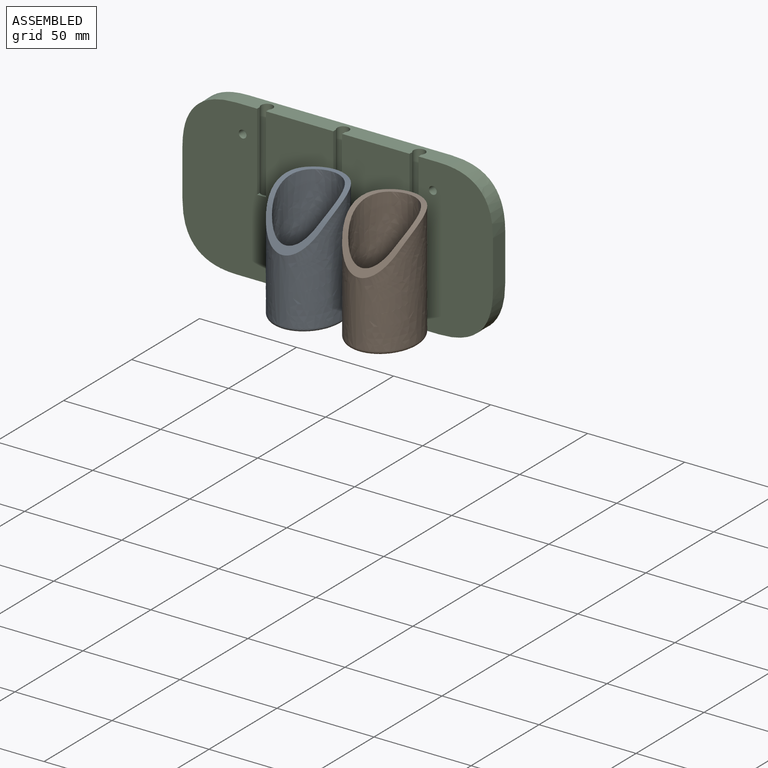
[diagram: assembled view]
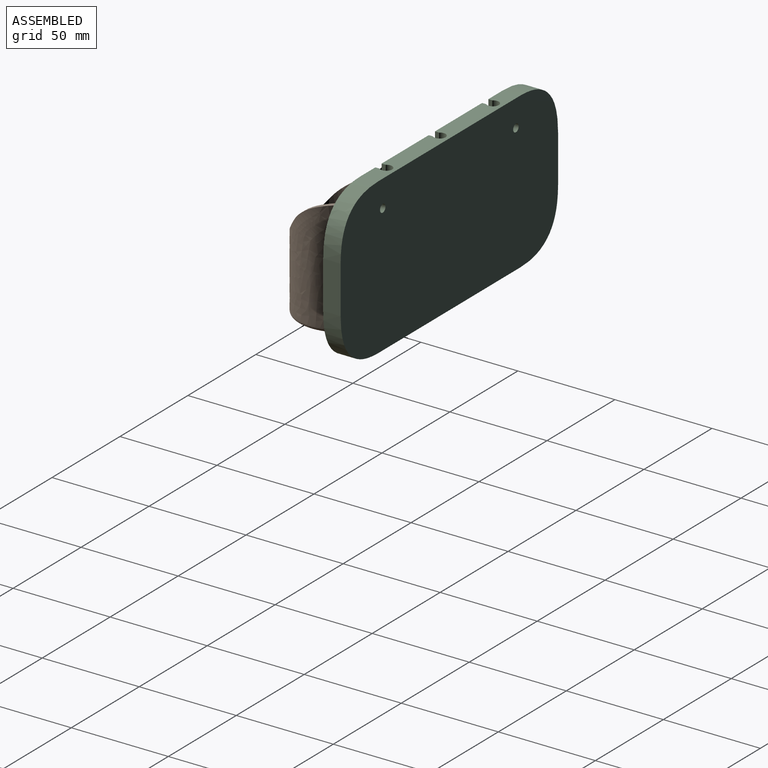
[diagram: assembled view, second angle]
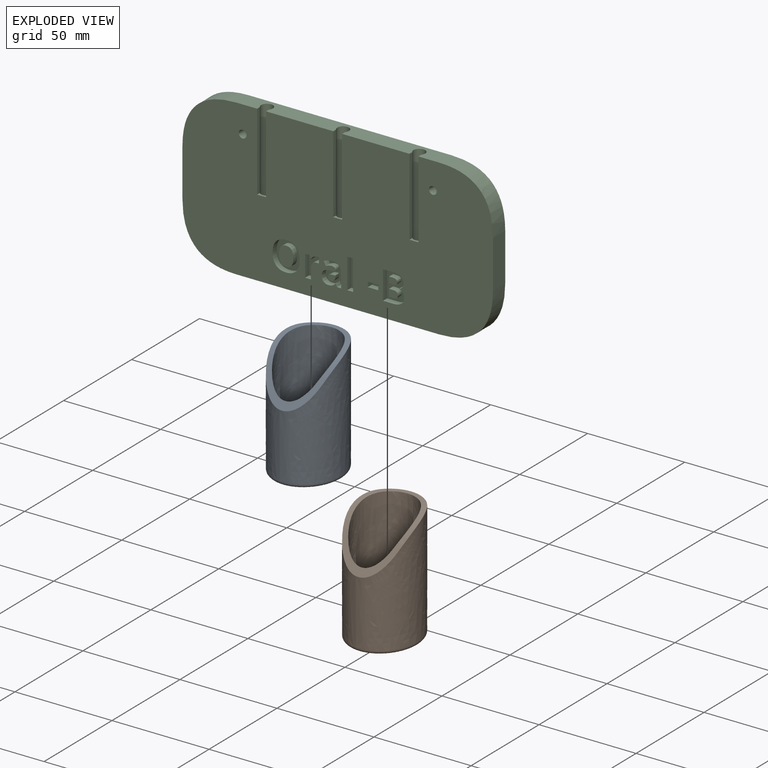
[diagram: exploded view]
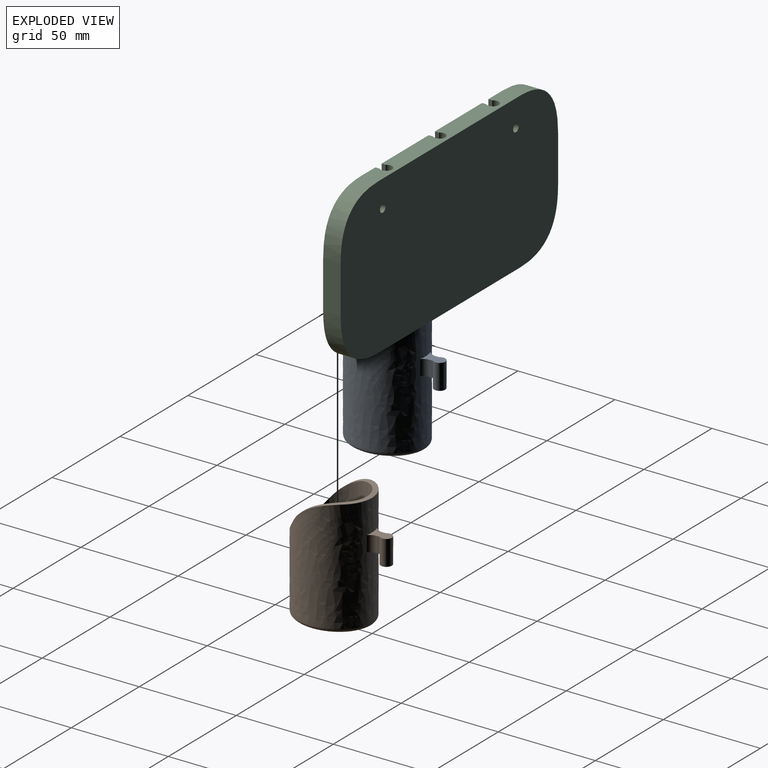
[diagram: exploded view, second angle]
ASSEMBLY  parts=3 mates=2
PART A: 27 faces, bbox 34.4x48.9x60 mm
  f0: extruded ~58x38.97mm, area 5697mm2, adj f2,f7,f8,f16,f17,f18,f19,f25
  f1: extruded ~55x34mm, area 4754.5mm2, adj f2,f4,f16,f17,f18
  f2: plane 23.82x5.46mm, normal (0,0,1), area 57.1mm2, adj f0,f1,f17,f18
  f3: plane 35.07x30.36mm, normal (0,0,-1), area 810.5mm2, adj f11,f12,f13,f14,f15,f19
  f4: plane 34x29.02mm, normal (0,0,1), area 607.1mm2, adj f1,f20,f21,f22,f23,f24
  f5: plane 8x2.24mm, normal (1,0,0), area 17.9mm2, adj f7,f8,f9,f26
  f6: plane 8x2.24mm, normal (-1,0,0), area 17.9mm2, adj f7,f8,f9,f25
  f7: plane 8.47x6.06mm, normal (0,0,-1), area 23.7mm2, adj f0,f5,f6,f9,f25,f26
  f8: plane 10.79x8.47mm, normal (0,0,1), area 50.1mm2, adj f0,f5,f6,f9,f25,f26
  f9: cylinder r=2.9mm len=13mm, axis (0,0,1), area 195.7mm2, adj f5,f6,f7,f8,f10
  f10: plane 5.8x5.8mm, normal (0,0,-1), area 26.4mm2, adj f9
  f11: cylinder r=1.25mm len=3mm, axis (0,0,-1), area 23.6mm2, adj f3,f24
  f12: cylinder r=1.35mm len=3mm, axis (0,0,-1), area 25.4mm2, adj f3,f23
  f13: cylinder r=1.25mm len=3mm, axis (0,0,-1), area 23.6mm2, adj f3,f22
  f14: cylinder r=1.25mm len=3mm, axis (0,0,-1), area 23.6mm2, adj f3,f21
  f15: cylinder r=1.25mm len=3mm, axis (0,0,-1), area 23.6mm2, adj f3,f20
  f16: plane 29.03x12.48mm, normal (0,-0.81,0.59), area 138.3mm2, adj f0,f1,f17,f18
  f17: cylinder r=30.35mm len=24.53mm, axis (1,0,0), area 81.6mm2, adj f0,f1,f2,f16
  f18: cylinder r=30.35mm len=24.53mm, axis (1,0,0), area 81.6mm2, adj f0,f1,f2,f16
  f19: bspline ~39.07x34.36mm, area 348.4mm2, adj f0,f3
  f20: torus R=3.25mm, axis (0,0,1), area 39mm2, adj f4,f15
  f21: torus R=3.25mm, axis (0,0,1), area 39mm2, adj f4,f14
  f22: torus R=3.25mm, axis (0,0,1), area 39mm2, adj f4,f13
  f23: torus R=3.35mm, axis (0,0,1), area 40.9mm2, adj f4,f12
  f24: torus R=3.25mm, axis (0,0,1), area 39mm2, adj f4,f11
  f25: cylinder r=5.16mm len=8mm, axis (0,0,1), area 37.1mm2, adj f0,f6,f7,f8
  f26: cylinder r=5.16mm len=8mm, axis (0,0,1), area 29.5mm2, adj f0,f5,f7,f8
PART B: same geometry as A
PART C: 122 faces, bbox 160x9.9x80 mm
  f0: plane 160x80mm, normal (0,-1,0), area 11197.4mm2, adj f1,f2,f3,f4,f6,f7,f8,f9
  f1: plane 24.47x9mm, normal (-1,0,0), area 220.3mm2, adj f0,f5,f9,f11
  f2: plane 104.47x9mm, normal (0,0,-1), area 940.3mm2, adj f0,f5,f10,f11
  f3: plane 24.47x9mm, normal (1,0,0), area 220.3mm2, adj f0,f5,f8,f10
  f4: plane 104.47x9mm, normal (0,0,1), area 836.8mm2, adj f0,f5,f8,f9,f107,f109,f111,f113
  f5: plane 160x80mm, normal (0,1,0), area 12261mm2, adj f1,f2,f3,f4,f6,f7,f8,f9
  f6: cylinder r=2mm len=9mm, axis (0,-1,0), area 113.1mm2, adj f0,f5
  f7: cylinder r=2mm len=9mm, axis (0,-1,0), area 113.1mm2, adj f0,f5
  f8: bspline ~27.76x27.76mm, area 405.6mm2, adj f0,f3,f4,f5
  f9: bspline ~27.76x27.76mm, area 405.6mm2, adj f0,f1,f4,f5
  f10: bspline ~27.76x27.76mm, area 405.6mm2, adj f0,f2,f3,f5
  f11: bspline ~27.76x27.76mm, area 405.6mm2, adj f0,f1,f2,f5
  f12: extruded ~3x1.03mm, area 3.1mm2, adj f0,f13,f24,f25
  f13: extruded ~3x1.93mm, area 6.1mm2, adj f0,f12,f14,f25
  f14: extruded ~3x1.52mm, area 6.3mm2, adj f0,f13,f15,f25
  f15: plane 3x0.15mm, normal (0,0,-1), area 0.4mm2, adj f0,f14,f16,f25
  f16: plane 3x1.89mm, normal (-0.97,0,-0.23), area 5.8mm2, adj f0,f15,f17,f25
  f17: plane 3x2.32mm, normal (0,0,-1), area 6.9mm2, adj f0,f16,f18,f25
  f18: plane 11.21x3mm, normal (1,0,0), area 33.6mm2, adj f0,f17,f19,f25
  f19: plane 3.06x3mm, normal (0,0,1), area 9.2mm2, adj f0,f18,f20,f25
  f20: plane 5.7x3mm, normal (-1,0,0), area 17.1mm2, adj f0,f19,f21,f25
  f21: extruded ~3x2.11mm, area 7mm2, adj f0,f20,f22,f25
  f22: extruded ~3x2.28mm, area 7.4mm2, adj f0,f21,f23,f25
  f23: extruded ~3x0.9mm, area 2.7mm2, adj f0,f22,f24,f25
  f24: plane 3x2.86mm, normal (-1,0,0.08), area 8.6mm2, adj f0,f12,f23,f25
  f25: plane 11.41x7.29mm, normal (0,-1,0), area 44.9mm2, adj f12,f13,f14,f15,f16,f17,f18,f19
  f26: plane 3.06x3mm, normal (0,0,1), area 9.2mm2, adj f0,f27,f29,f30
  f27: plane 15.6x3mm, normal (-1,0,0), area 46.8mm2, adj f0,f26,f28,f30
  f28: plane 3.06x3mm, normal (0,0,-1), area 9.2mm2, adj f0,f27,f29,f30
  f29: plane 15.6x3mm, normal (1,0,0), area 46.8mm2, adj f0,f26,f28,f30
  f30: plane 15.6x3.06mm, normal (0,-1,0), area 47.7mm2, adj f26,f27,f28,f29
  f31: plane 3x2.5mm, normal (1,0,0), area 7.5mm2, adj f0,f32,f34,f35
  f32: plane 5.38x3mm, normal (0,0,1), area 16.1mm2, adj f0,f31,f33,f35
  f33: plane 3x2.5mm, normal (-1,0,0), area 7.5mm2, adj f0,f32,f34,f35
  f34: plane 5.38x3mm, normal (0,0,-1), area 16.1mm2, adj f0,f31,f33,f35
  f35: plane 5.38x2.5mm, normal (0,-1,0), area 13.5mm2, adj f31,f32,f33,f34
  f36: extruded ~3.7x3mm, area 11.6mm2, adj f37,f49,f50,f104
  f37: extruded ~3.7x3mm, area 11.7mm2, adj f36,f38,f50,f104
  f38: extruded ~3x2.8mm, area 9.5mm2, adj f37,f39,f50,f104
  f39: extruded ~4.95x3.7mm, area 21.1mm2, adj f38,f40,f50,f104
  f40: extruded ~4.94x3.72mm, area 21.2mm2, adj f39,f49,f50,f104
  f41: extruded ~5.59x3mm, area 18.1mm2, adj f0,f42,f48,f50
  f42: extruded ~5.59x3mm, area 18mm2, adj f0,f41,f43,f50
  f43: extruded ~5.17x3mm, area 17.1mm2, adj f0,f42,f44,f50
  f44: extruded ~5.19x3mm, area 17.1mm2, adj f0,f43,f45,f50
  f45: extruded ~5.59x3mm, area 18.1mm2, adj f0,f44,f46,f50
  f46: extruded ~5.61x3mm, area 18.1mm2, adj f0,f45,f47,f50
  f47: extruded ~5.17x3mm, area 17.1mm2, adj f0,f46,f48,f50
  f48: extruded ~5.17x3mm, area 17.1mm2, adj f0,f41,f47,f50
  f49: extruded ~3x2.79mm, area 9.5mm2, adj f36,f40,f50,f104
  f50: plane 15.09x13.95mm, normal (0,-1,0), area 112.4mm2, adj f36,f37,f38,f39,f40,f41,f42,f43
  f51: plane 3x1.18mm, normal (-0.04,0,1), area 3.6mm2, adj f52,f75,f76,f105
  f52: plane 3x0.92mm, normal (1,0,0), area 2.8mm2, adj f51,f53,f76,f105
  f53: extruded ~3x1.62mm, area 5.4mm2, adj f52,f54,f76,f105
  f54: extruded ~3x1.7mm, area 5.6mm2, adj f53,f55,f76,f105
  f55: extruded ~3x1.48mm, area 6.8mm2, adj f54,f56,f76,f105
  f56: extruded ~3x1.34mm, area 4.7mm2, adj f55,f75,f76,f105
  f57: plane 3x1.52mm, normal (0.93,0,0.36), area 4.9mm2, adj f0,f58,f74,f76
  f58: plane 3x2.13mm, normal (0,0,1), area 6.4mm2, adj f0,f57,f59,f76
  f59: plane 7.47x3mm, normal (-1,0,0), area 22.4mm2, adj f0,f58,f60,f76
  f60: extruded ~3x2.99mm, area 10mm2, adj f0,f59,f61,f76
  f61: extruded ~3.46x3mm, area 11mm2, adj f0,f60,f62,f76
  f62: extruded ~4.29x3mm, area 13.3mm2, adj f0,f61,f63,f76
  f63: plane 3x2.07mm, normal (0.9,0,0.44), area 6.9mm2, adj f0,f62,f64,f76
  f64: extruded ~3.16x3mm, area 9.9mm2, adj f0,f63,f65,f76
  f65: extruded ~3x1.74mm, area 8.4mm2, adj f0,f64,f66,f76
  f66: plane 3x0.49mm, normal (1,0,0), area 1.5mm2, adj f0,f65,f67,f76
  f67: plane 3x1.95mm, normal (0.03,0,-1), area 5.8mm2, adj f0,f66,f68,f76
  f68: extruded ~3.76x3mm, area 11.8mm2, adj f0,f67,f69,f76
  f69: extruded ~3x2.63mm, area 9.1mm2, adj f0,f68,f70,f76
  f70: extruded ~3x2.63mm, area 8.6mm2, adj f0,f69,f71,f76
  f71: extruded ~3x2.54mm, area 8.3mm2, adj f0,f70,f72,f76
  f72: extruded ~3x2.13mm, area 6.5mm2, adj f0,f71,f73,f76
  f73: extruded ~3x1.59mm, area 6.3mm2, adj f0,f72,f74,f76
  f74: plane 3x0.08mm, normal (0,0,1), area 0.2mm2, adj f0,f57,f73,f76
  f75: extruded ~3x1.99mm, area 6.2mm2, adj f51,f56,f76,f105
  f76: plane 11.64x9.99mm, normal (0,-1,0), area 76.9mm2, adj f51,f52,f53,f54,f55,f56,f57,f58
  f77: plane 3.82x3mm, normal (-1,0,0), area 11.5mm2, adj f78,f101,f102,f106
  f78: plane 3x1.92mm, normal (0,0,1), area 5.8mm2, adj f77,f79,f102,f106
  f79: extruded ~3x2.6mm, area 10.8mm2, adj f78,f80,f102,f106
  f80: extruded ~3x1.5mm, area 5mm2, adj f79,f81,f102,f106
  f81: extruded ~3x1.89mm, area 6mm2, adj f80,f101,f102,f106
  f82: plane 3x1.8mm, normal (0,0,-1), area 5.4mm2, adj f83,f99,f102,f103
  f83: plane 3.26x3mm, normal (-1,0,0), area 9.8mm2, adj f82,f84,f102,f103
  f84: plane 3x1.63mm, normal (0,0,1), area 4.9mm2, adj f83,f85,f102,f103
  f85: extruded ~3x1.95mm, area 6mm2, adj f84,f86,f102,f103
  f86: extruded ~3x1.21mm, area 4.3mm2, adj f85,f87,f102,f103
  f87: extruded ~3x1.29mm, area 4.4mm2, adj f86,f99,f102,f103
  f88: plane 4.56x3mm, normal (0,0,-1), area 13.7mm2, adj f0,f89,f100,f102
  f89: plane 14.65x3mm, normal (1,0,0), area 44mm2, adj f0,f88,f90,f102
  f90: plane 5.48x3mm, normal (0,0,1), area 16.4mm2, adj f0,f89,f91,f102
  f91: extruded ~3.94x3mm, area 12.5mm2, adj f0,f90,f92,f102
  f92: extruded ~3.13x3mm, area 10.7mm2, adj f0,f91,f93,f102
  f93: extruded ~3x2.27mm, area 7.2mm2, adj f0,f92,f94,f102
  f94: extruded ~3x2.01mm, area 7.1mm2, adj f0,f93,f95,f102
  f95: plane 3x0.1mm, normal (-1,0,0), area 0.3mm2, adj f0,f94,f96,f102
  f96: extruded ~3x1.64mm, area 5.9mm2, adj f0,f95,f97,f102
  f97: extruded ~3x2.16mm, area 6.8mm2, adj f0,f96,f98,f102
  f98: extruded ~3x2.82mm, area 9.9mm2, adj f0,f97,f100,f102
  f99: extruded ~3x1.83mm, area 5.7mm2, adj f82,f87,f102,f103
  f100: extruded ~4.53x3mm, area 14mm2, adj f0,f88,f98,f102
  f101: plane 3x2.02mm, normal (0,0,-1), area 6.1mm2, adj f77,f81,f102,f106
  f102: plane 14.65x10.87mm, normal (0,-1,0), area 117.1mm2, adj f77,f78,f79,f80,f81,f82,f83,f84
  f103: plane 4.2x3.26mm, normal (0,-1,0), area 12.4mm2, adj f82,f83,f84,f85,f86,f87,f99
  f104: plane 9.89x7.43mm, normal (0,-1,0), area 61.2mm2, adj f36,f37,f38,f39,f40,f49
  f105: plane 3.82x3.16mm, normal (0,-1,0), area 9.8mm2, adj f51,f52,f53,f54,f55,f56,f75
  f106: plane 4.53x3.82mm, normal (0,-1,0), area 15.7mm2, adj f77,f78,f79,f80,f81,f101
  f107: cylinder r=3mm len=45mm, axis (0,0,1), area 638.6mm2, adj f4,f108,f119,f120,f121
  f108: plane 6x6mm, normal (0,0,1), area 28.3mm2, adj f107
  f109: cylinder r=3mm len=45mm, axis (0,0,1), area 638.6mm2, adj f4,f110,f116,f117,f118
  f110: plane 6x6mm, normal (0,0,1), area 28.3mm2, adj f109
  f111: cylinder r=3mm len=45mm, axis (0,0,1), area 638.6mm2, adj f4,f112,f113,f114,f115
  f112: plane 6x6mm, normal (0,0,1), area 28.3mm2, adj f111
  f113: plane 40x2.07mm, normal (1,0,0), area 83mm2, adj f0,f4,f111,f115
  f114: plane 40x2.07mm, normal (-1,0,0), area 83mm2, adj f0,f4,f111,f115
  f115: plane 4.6x2.07mm, normal (0,0,1), area 6.1mm2, adj f0,f111,f113,f114
  f116: plane 40x2.11mm, normal (1,0,0), area 84.3mm2, adj f0,f4,f109,f118
  f117: plane 40x2.11mm, normal (-1,0,0), area 84.3mm2, adj f0,f4,f109,f118
  f118: plane 4.6x2.11mm, normal (0,0,1), area 6.3mm2, adj f0,f109,f116,f117
  f119: plane 40x2.11mm, normal (1,0,0), area 84.3mm2, adj f0,f4,f107,f121
  f120: plane 40x2.11mm, normal (-1,0,0), area 84.3mm2, adj f0,f4,f107,f121
  f121: plane 4.6x2.11mm, normal (0,0,1), area 6.3mm2, adj f0,f107,f119,f120
PLACE A t=(-33.14,-78.51,-33.66)mm
PLACE B t=(6.14,-78.51,-33.66)mm
PLACE C t=(9.56,2.45,2.16)mm
MATE fastened A.f9 <-> C.f109  axis (0,0,1) through (9.56,6.49,-2.84)mm
MATE fastened B.f9 <-> C.f107  axis (0,0,-1) through (48.83,6.49,-2.84)mm
